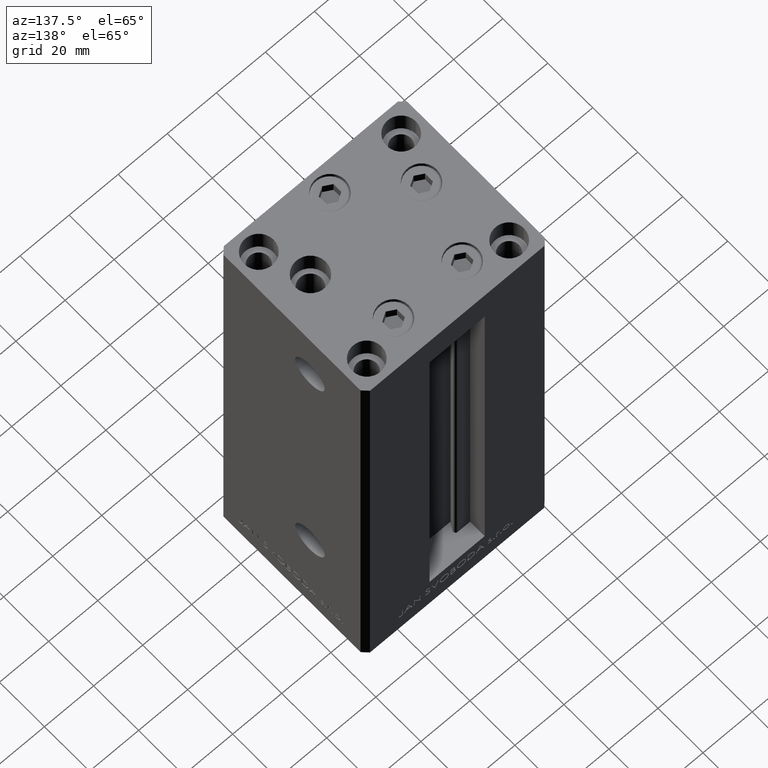
[diagram: clean part render]
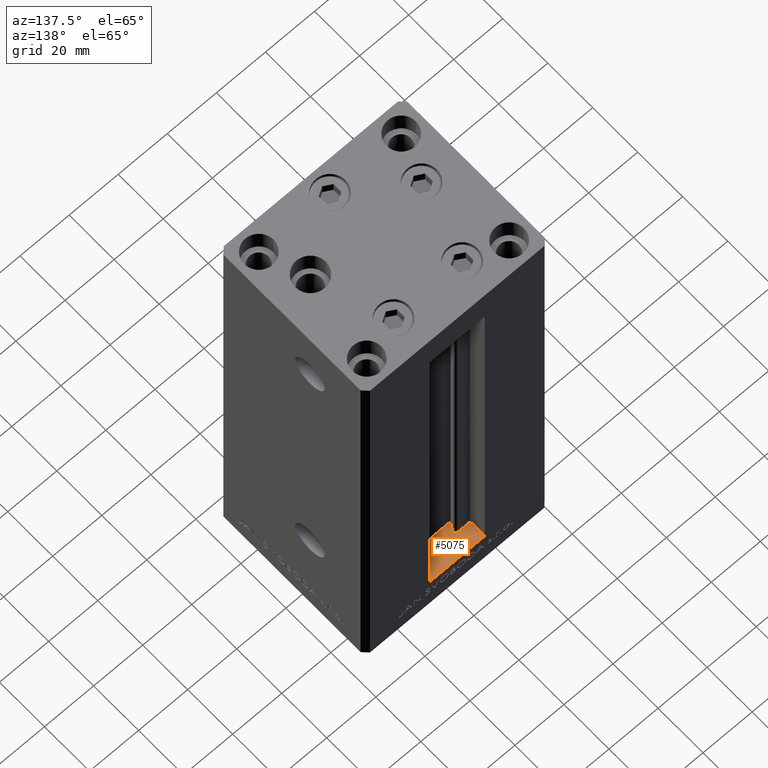
[diagram: same view with one face highlighted and labeled with its STEP entity id]
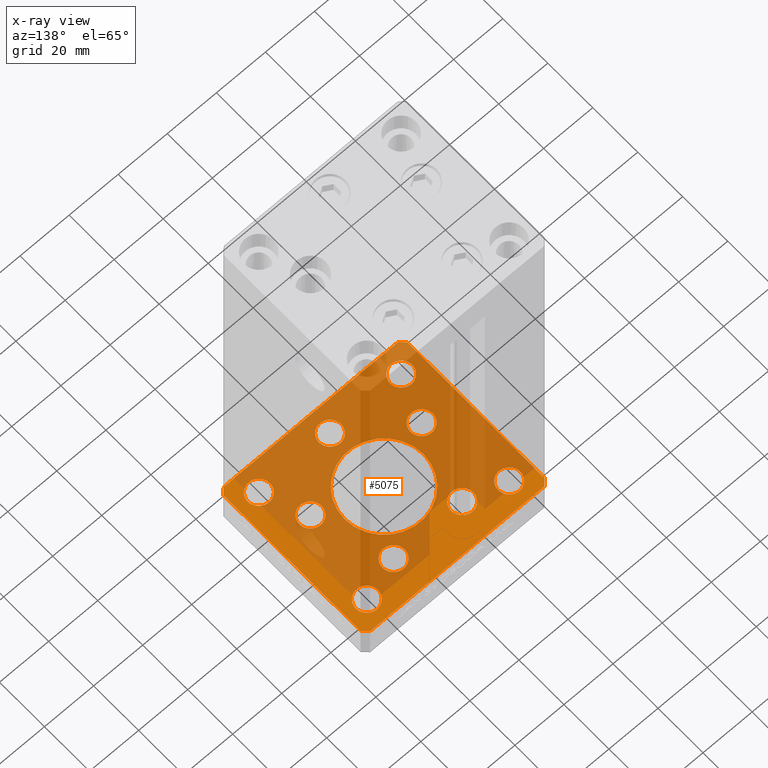
[diagram: x-ray of the same camera — body ghosted, the highlighted face saturated]
A machine part, auxiliary view. The second image highlights one B-rep face of the part: STEP entity #5075.
The next image is the same camera in x-ray: the body ghosted, the highlighted face saturated — about 74% of this face is hidden behind the body in this view.
In plain terms, the highlighted planar face has unit normal (0, 0, -1).
Its self-contained STEP definition (entity closure, byte-faithful):
#142 = CARTESIAN_POINT ( 'NONE',  ( -22.62741699796953299, -8.000000000000000000, -15.00000000000000000 ) ) ;
#243 = AXIS2_PLACEMENT_3D ( 'NONE', #34805, #42059, #4661 ) ;
#250 = EDGE_LOOP ( 'NONE', ( #38400, #26337 ) ) ;
#397 = ORIENTED_EDGE ( 'NONE', *, *, #16939, .T. ) ;
#432 = CIRCLE ( 'NONE', #32227, 4.500000000000000888 ) ;
#684 = DIRECTION ( 'NONE',  ( 0.000000000000000000, -0.000000000000000000, -1.000000000000000000 ) ) ;
#942 = FACE_BOUND ( 'NONE', #36001, .T. ) ;
#983 = DIRECTION ( 'NONE',  ( 1.000000000000000000, 0.000000000000000000, 0.000000000000000000 ) ) ;
#1097 = DIRECTION ( 'NONE',  ( -0.000000000000000000, 0.000000000000000000, 1.000000000000000000 ) ) ;
#1329 = CIRCLE ( 'NONE', #41115, 4.500000000000001776 ) ;
#1412 = CARTESIAN_POINT ( 'NONE',  ( 24.50000000000000711, -23.99999999999999645, -15.00000000000000000 ) ) ;
#1627 = DIRECTION ( 'NONE',  ( -0.000000000000000000, 0.000000000000000000, 1.000000000000000000 ) ) ;
#1946 = EDGE_LOOP ( 'NONE', ( #32610, #43223 ) ) ;
#1993 = ORIENTED_EDGE ( 'NONE', *, *, #33573, .T. ) ;
#2000 = CIRCLE ( 'NONE', #36976, 4.499999999999997335 ) ;
#2285 = AXIS2_PLACEMENT_3D ( 'NONE', #44290, #5423, #10135 ) ;
#2290 = CIRCLE ( 'NONE', #30148, 4.500000000000000888 ) ;
#2345 = CARTESIAN_POINT ( 'NONE',  ( 0.000000000000000000, 0.000000000000000000, -15.00000000000000000 ) ) ;
#2596 = LINE ( 'NONE', #40474, #9770 ) ;
#2617 = ORIENTED_EDGE ( 'NONE', *, *, #5468, .T. ) ;
#2676 = CARTESIAN_POINT ( 'NONE',  ( -13.99106857963324124, 19.50000000000000000, -15.00000000000000000 ) ) ;
#2877 = ORIENTED_EDGE ( 'NONE', *, *, #29733, .T. ) ;
#3171 = ORIENTED_EDGE ( 'NONE', *, *, #44455, .T. ) ;
#3419 = VERTEX_POINT ( 'NONE', #29517 ) ;
#3714 = FACE_BOUND ( 'NONE', #36954, .T. ) ;
#4111 = VECTOR ( 'NONE', #8020, 1000.000000000000000 ) ;
#4661 = DIRECTION ( 'NONE',  ( 1.000000000000000000, 0.000000000000000000, 0.000000000000000000 ) ) ;
#5075 = ADVANCED_FACE ( 'NONE', ( #15173, #26375, #3714, #41834, #12405, #5658, #942, #31815, #23615, #19872, #16868 ), #20846, .F. ) ;
#5081 = DIRECTION ( 'NONE',  ( -0.000000000000000000, 0.000000000000000000, 1.000000000000000000 ) ) ;
#5360 = DIRECTION ( 'NONE',  ( 1.000000000000000000, 0.000000000000000000, 0.000000000000000000 ) ) ;
#5423 = DIRECTION ( 'NONE',  ( 0.000000000000000000, -0.000000000000000000, -1.000000000000000000 ) ) ;
#5468 = EDGE_CURVE ( 'NONE', #32954, #5662, #36621, .T. ) ;
#5490 = AXIS2_PLACEMENT_3D ( 'NONE', #142, #1097, #30516 ) ;
#5658 = FACE_BOUND ( 'NONE', #18619, .T. ) ;
#5662 = VERTEX_POINT ( 'NONE', #1412 ) ;
#5701 = CARTESIAN_POINT ( 'NONE',  ( 16.00000000000000000, 0.000000000000000000, -15.00000000000000000 ) ) ;
#5806 = CARTESIAN_POINT ( 'NONE',  ( 9.491068579633235913, 19.50000000000000000, -15.00000000000000000 ) ) ;
#5924 = CIRCLE ( 'NONE', #46541, 4.500000000000000888 ) ;
#6284 = CARTESIAN_POINT ( 'NONE',  ( -35.50000000000001421, -32.50000000000000711, -15.00000000000000000 ) ) ;
#6289 = CARTESIAN_POINT ( 'NONE',  ( -37.50000000000001421, 30.50000000000000000, -15.00000000000000000 ) ) ;
#6392 = AXIS2_PLACEMENT_3D ( 'NONE', #8292, #49195, #12029 ) ;
#6449 = DIRECTION ( 'NONE',  ( 1.000000000000000000, 0.000000000000000000, 0.000000000000000000 ) ) ;
#6965 = AXIS2_PLACEMENT_3D ( 'NONE', #35954, #5081, #27978 ) ;
#7226 = ORIENTED_EDGE ( 'NONE', *, *, #7372, .F. ) ;
#7372 = EDGE_CURVE ( 'NONE', #43460, #41825, #27169, .T. ) ;
#7498 = AXIS2_PLACEMENT_3D ( 'NONE', #8894, #23601, #27317 ) ;
#7522 = EDGE_CURVE ( 'NONE', #49238, #14176, #27891, .T. ) ;
#7566 = DIRECTION ( 'NONE',  ( -0.000000000000000000, 0.000000000000000000, 1.000000000000000000 ) ) ;
#8020 = DIRECTION ( 'NONE',  ( 1.000000000000000000, 1.172770800660376149E-15, 0.000000000000000000 ) ) ;
#8133 = CARTESIAN_POINT ( 'NONE',  ( -18.12741699796953654, -8.000000000000000000, -15.00000000000000000 ) ) ;
#8170 = CARTESIAN_POINT ( 'NONE',  ( -33.50000000000000000, -23.99999999999999645, -15.00000000000000000 ) ) ;
#8292 = CARTESIAN_POINT ( 'NONE',  ( 29.00000000000000355, -23.99999999999999645, -15.00000000000000000 ) ) ;
#8319 = CIRCLE ( 'NONE', #39314, 4.500000000000005329 ) ;
#8325 = EDGE_CURVE ( 'NONE', #34758, #42395, #27207, .T. ) ;
#8427 = CARTESIAN_POINT ( 'NONE',  ( 0.000000000000000000, 0.000000000000000000, -15.00000000000000000 ) ) ;
#8558 = CARTESIAN_POINT ( 'NONE',  ( -24.50000000000000000, 24.00000000000000711, -15.00000000000000000 ) ) ;
#8725 = EDGE_LOOP ( 'NONE', ( #44553, #18529 ) ) ;
#8748 = DIRECTION ( 'NONE',  ( 1.000000000000000000, 0.000000000000000000, 0.000000000000000000 ) ) ;
#8886 = DIRECTION ( 'NONE',  ( 1.000000000000000000, 0.000000000000000000, 0.000000000000000000 ) ) ;
#8894 = CARTESIAN_POINT ( 'NONE',  ( 29.00000000000000000, 24.00000000000000355, -15.00000000000000000 ) ) ;
#8903 = AXIS2_PLACEMENT_3D ( 'NONE', #36103, #40597, #6449 ) ;
#9437 = CARTESIAN_POINT ( 'NONE',  ( 13.99106857963324124, 19.50000000000000000, -15.00000000000000000 ) ) ;
#9584 = ORIENTED_EDGE ( 'NONE', *, *, #15505, .T. ) ;
#9770 = VECTOR ( 'NONE', #43728, 1000.000000000000000 ) ;
#9778 = CIRCLE ( 'NONE', #16157, 4.499999999999997335 ) ;
#9997 = VERTEX_POINT ( 'NONE', #38106 ) ;
#10021 = CARTESIAN_POINT ( 'NONE',  ( -37.50000000000000000, -30.50000000000004263, -15.00000000000000000 ) ) ;
#10108 = ORIENTED_EDGE ( 'NONE', *, *, #7522, .F. ) ;
#10135 = DIRECTION ( 'NONE',  ( 1.000000000000000000, 0.000000000000000000, 0.000000000000000000 ) ) ;
#10485 = CARTESIAN_POINT ( 'NONE',  ( -4.500000000000001776, -24.00000000000001066, -15.00000000000000000 ) ) ;
#10556 = CIRCLE ( 'NONE', #35232, 16.00000000000000000 ) ;
#11216 = ORIENTED_EDGE ( 'NONE', *, *, #24983, .F. ) ;
#11344 = DIRECTION ( 'NONE',  ( 0.000000000000000000, 1.000000000000000000, 0.000000000000000000 ) ) ;
#11366 = DIRECTION ( 'NONE',  ( 0.000000000000000000, -0.000000000000000000, -1.000000000000000000 ) ) ;
#12029 = DIRECTION ( 'NONE',  ( 1.000000000000000000, 0.000000000000000000, 0.000000000000000000 ) ) ;
#12359 = CARTESIAN_POINT ( 'NONE',  ( -29.00000000000000000, 24.00000000000000711, -15.00000000000000000 ) ) ;
#12405 = FACE_BOUND ( 'NONE', #47648, .T. ) ;
#12478 = CARTESIAN_POINT ( 'NONE',  ( -29.00000000000000000, 24.00000000000000711, -15.00000000000000000 ) ) ;
#12582 = EDGE_CURVE ( 'NONE', #37659, #41472, #16858, .T. ) ;
#12624 = VERTEX_POINT ( 'NONE', #24071 ) ;
#12926 = DIRECTION ( 'NONE',  ( -0.000000000000000000, 0.000000000000000000, 1.000000000000000000 ) ) ;
#13010 = CIRCLE ( 'NONE', #28918, 16.00000000000000000 ) ;
#13429 = VERTEX_POINT ( 'NONE', #5701 ) ;
#13501 = EDGE_CURVE ( 'NONE', #46667, #38121, #15355, .T. ) ;
#13541 = ORIENTED_EDGE ( 'NONE', *, *, #17160, .F. ) ;
#13802 = CARTESIAN_POINT ( 'NONE',  ( 4.500000000000001776, -24.00000000000001066, -15.00000000000000000 ) ) ;
#13806 = DIRECTION ( 'NONE',  ( 0.000000000000000000, -0.000000000000000000, -1.000000000000000000 ) ) ;
#14176 = VERTEX_POINT ( 'NONE', #32195 ) ;
#14544 = ORIENTED_EDGE ( 'NONE', *, *, #8325, .T. ) ;
#14730 = VECTOR ( 'NONE', #40178, 1000.000000000000000 ) ;
#15079 = LINE ( 'NONE', #30266, #32075 ) ;
#15103 = EDGE_CURVE ( 'NONE', #12624, #22463, #15079, .T. ) ;
#15173 = FACE_BOUND ( 'NONE', #250, .T. ) ;
#15355 = CIRCLE ( 'NONE', #243, 4.500000000000000888 ) ;
#15505 = EDGE_CURVE ( 'NONE', #33047, #36737, #9778, .T. ) ;
#15956 = AXIS2_PLACEMENT_3D ( 'NONE', #8427, #38812, #20356 ) ;
#16146 = DIRECTION ( 'NONE',  ( -0.000000000000000000, 0.000000000000000000, 1.000000000000000000 ) ) ;
#16157 = AXIS2_PLACEMENT_3D ( 'NONE', #22911, #27120, #38117 ) ;
#16601 = ORIENTED_EDGE ( 'NONE', *, *, #20437, .T. ) ;
#16858 = CIRCLE ( 'NONE', #41569, 4.499999999999999112 ) ;
#16868 = FACE_BOUND ( 'NONE', #24679, .T. ) ;
#16939 = EDGE_CURVE ( 'NONE', #43408, #44301, #24185, .T. ) ;
#17160 = EDGE_CURVE ( 'NONE', #3419, #32261, #36124, .T. ) ;
#17877 = DIRECTION ( 'NONE',  ( -0.000000000000000000, 0.000000000000000000, 1.000000000000000000 ) ) ;
#17908 = EDGE_LOOP ( 'NONE', ( #9584, #3171 ) ) ;
#18529 = ORIENTED_EDGE ( 'NONE', *, *, #35450, .F. ) ;
#18588 = LINE ( 'NONE', #46014, #20193 ) ;
#18619 = EDGE_LOOP ( 'NONE', ( #16601, #37602 ) ) ;
#19072 = CARTESIAN_POINT ( 'NONE',  ( 0.000000000000000000, 0.000000000000000000, -15.00000000000000000 ) ) ;
#19247 = EDGE_CURVE ( 'NONE', #5662, #32954, #2000, .T. ) ;
#19424 = AXIS2_PLACEMENT_3D ( 'NONE', #9437, #12926, #983 ) ;
#19579 = DIRECTION ( 'NONE',  ( 0.7071067811865463515, 0.7071067811865487940, 0.000000000000000000 ) ) ;
#19645 = VERTEX_POINT ( 'NONE', #6289 ) ;
#19872 = FACE_BOUND ( 'NONE', #23189, .T. ) ;
#19947 = ORIENTED_EDGE ( 'NONE', *, *, #46979, .F. ) ;
#20193 = VECTOR ( 'NONE', #19579, 1000.000000000000000 ) ;
#20310 = DIRECTION ( 'NONE',  ( -0.000000000000000000, 0.000000000000000000, 1.000000000000000000 ) ) ;
#20356 = DIRECTION ( 'NONE',  ( 1.000000000000000000, 0.000000000000000000, 0.000000000000000000 ) ) ;
#20437 = EDGE_CURVE ( 'NONE', #41472, #37659, #27476, .T. ) ;
#20846 = PLANE ( 'NONE',  #15956 ) ;
#21862 = DIRECTION ( 'NONE',  ( 1.000000000000000000, 0.000000000000000000, 0.000000000000000000 ) ) ;
#22318 = VERTEX_POINT ( 'NONE', #30902 ) ;
#22463 = VERTEX_POINT ( 'NONE', #29854 ) ;
#22911 = CARTESIAN_POINT ( 'NONE',  ( -22.62741699796953299, -8.000000000000000000, -15.00000000000000000 ) ) ;
#23189 = EDGE_LOOP ( 'NONE', ( #1993, #2877 ) ) ;
#23601 = DIRECTION ( 'NONE',  ( 0.000000000000000000, -0.000000000000000000, -1.000000000000000000 ) ) ;
#23615 = FACE_OUTER_BOUND ( 'NONE', #45800, .T. ) ;
#23730 = CARTESIAN_POINT ( 'NONE',  ( -29.00000000000000000, -23.99999999999999645, -15.00000000000000000 ) ) ;
#24045 = CARTESIAN_POINT ( 'NONE',  ( 29.00000000000000355, -23.99999999999999645, -15.00000000000000000 ) ) ;
#24071 = CARTESIAN_POINT ( 'NONE',  ( 37.50000000000000711, -30.49999999999992895, -15.00000000000000000 ) ) ;
#24185 = CIRCLE ( 'NONE', #19424, 4.500000000000005329 ) ;
#24679 = EDGE_LOOP ( 'NONE', ( #2617, #38885 ) ) ;
#24746 = ORIENTED_EDGE ( 'NONE', *, *, #15103, .F. ) ;
#24983 = EDGE_CURVE ( 'NONE', #22463, #49238, #2596, .T. ) ;
#25311 = EDGE_CURVE ( 'NONE', #9997, #13429, #10556, .T. ) ;
#25519 = CARTESIAN_POINT ( 'NONE',  ( -33.50000000000000000, 24.00000000000000711, -15.00000000000000000 ) ) ;
#26264 = CARTESIAN_POINT ( 'NONE',  ( -27.12741699796953299, -8.000000000000000000, -15.00000000000000000 ) ) ;
#26337 = ORIENTED_EDGE ( 'NONE', *, *, #25311, .F. ) ;
#26371 = ORIENTED_EDGE ( 'NONE', *, *, #35452, .F. ) ;
#26375 = FACE_BOUND ( 'NONE', #17908, .T. ) ;
#27120 = DIRECTION ( 'NONE',  ( -0.000000000000000000, 0.000000000000000000, 1.000000000000000000 ) ) ;
#27169 = LINE ( 'NONE', #27407, #4111 ) ;
#27207 = CIRCLE ( 'NONE', #8903, 4.500000000000001776 ) ;
#27277 = EDGE_CURVE ( 'NONE', #41825, #12624, #18588, .T. ) ;
#27317 = DIRECTION ( 'NONE',  ( 1.000000000000000000, 0.000000000000000000, 0.000000000000000000 ) ) ;
#27407 = CARTESIAN_POINT ( 'NONE',  ( -35.50000000000001421, -32.50000000000000711, -15.00000000000000000 ) ) ;
#27476 = CIRCLE ( 'NONE', #48171, 4.499999999999999112 ) ;
#27496 = EDGE_CURVE ( 'NONE', #13429, #9997, #13010, .T. ) ;
#27778 = CARTESIAN_POINT ( 'NONE',  ( -18.49106857963323947, 19.50000000000000000, -15.00000000000000000 ) ) ;
#27891 = LINE ( 'NONE', #32132, #39875 ) ;
#27978 = DIRECTION ( 'NONE',  ( 1.000000000000000000, 0.000000000000000000, 0.000000000000000000 ) ) ;
#28182 = LINE ( 'NONE', #38693, #28235 ) ;
#28235 = VECTOR ( 'NONE', #35913, 1000.000000000000000 ) ;
#28738 = DIRECTION ( 'NONE',  ( 1.000000000000000000, 0.000000000000000000, 0.000000000000000000 ) ) ;
#28835 = LINE ( 'NONE', #36327, #39663 ) ;
#28918 = AXIS2_PLACEMENT_3D ( 'NONE', #2345, #13806, #28738 ) ;
#29084 = DIRECTION ( 'NONE',  ( -0.000000000000000000, 0.000000000000000000, 1.000000000000000000 ) ) ;
#29517 = CARTESIAN_POINT ( 'NONE',  ( 33.50000000000000000, 24.00000000000000355, -15.00000000000000000 ) ) ;
#29733 = EDGE_CURVE ( 'NONE', #44288, #33331, #5924, .T. ) ;
#29854 = CARTESIAN_POINT ( 'NONE',  ( 37.50000000000000711, 30.50000000000001421, -15.00000000000000000 ) ) ;
#30037 = DIRECTION ( 'NONE',  ( 1.000000000000000000, 0.000000000000000000, 0.000000000000000000 ) ) ;
#30148 = AXIS2_PLACEMENT_3D ( 'NONE', #39034, #684, #8886 ) ;
#30266 = CARTESIAN_POINT ( 'NONE',  ( 37.50000000000000711, -30.49999999999992895, -15.00000000000000000 ) ) ;
#30516 = DIRECTION ( 'NONE',  ( 1.000000000000000000, 0.000000000000000000, 0.000000000000000000 ) ) ;
#30902 = CARTESIAN_POINT ( 'NONE',  ( -37.50000000000000000, -30.50000000000004263, -15.00000000000000000 ) ) ;
#30905 = ORIENTED_EDGE ( 'NONE', *, *, #31126, .F. ) ;
#31091 = CARTESIAN_POINT ( 'NONE',  ( 13.99106857963324124, 19.50000000000000000, -15.00000000000000000 ) ) ;
#31126 = EDGE_CURVE ( 'NONE', #22318, #43460, #44415, .T. ) ;
#31815 = FACE_BOUND ( 'NONE', #8725, .T. ) ;
#32075 = VECTOR ( 'NONE', #11344, 1000.000000000000000 ) ;
#32132 = CARTESIAN_POINT ( 'NONE',  ( 35.50000000000000000, 32.49999999999999289, -15.00000000000000000 ) ) ;
#32195 = CARTESIAN_POINT ( 'NONE',  ( -35.50000000000000711, 32.49999999999997868, -15.00000000000000000 ) ) ;
#32227 = AXIS2_PLACEMENT_3D ( 'NONE', #23730, #39178, #42921 ) ;
#32252 = DIRECTION ( 'NONE',  ( 1.000000000000000000, 0.000000000000000000, 0.000000000000000000 ) ) ;
#32261 = VERTEX_POINT ( 'NONE', #48505 ) ;
#32610 = ORIENTED_EDGE ( 'NONE', *, *, #13501, .T. ) ;
#32904 = EDGE_CURVE ( 'NONE', #44301, #43408, #8319, .T. ) ;
#32954 = VERTEX_POINT ( 'NONE', #44282 ) ;
#33047 = VERTEX_POINT ( 'NONE', #8133 ) ;
#33331 = VERTEX_POINT ( 'NONE', #8558 ) ;
#33342 = VERTEX_POINT ( 'NONE', #35448 ) ;
#33573 = EDGE_CURVE ( 'NONE', #33331, #44288, #40138, .T. ) ;
#34758 = VERTEX_POINT ( 'NONE', #10485 ) ;
#34805 = CARTESIAN_POINT ( 'NONE',  ( 22.62741699796953299, -8.000000000000000000, -15.00000000000000000 ) ) ;
#35232 = AXIS2_PLACEMENT_3D ( 'NONE', #19072, #11366, #30037 ) ;
#35448 = CARTESIAN_POINT ( 'NONE',  ( -24.50000000000000000, -23.99999999999999645, -15.00000000000000000 ) ) ;
#35450 = EDGE_CURVE ( 'NONE', #47231, #33342, #432, .T. ) ;
#35452 = EDGE_CURVE ( 'NONE', #14176, #19645, #28182, .T. ) ;
#35671 = ORIENTED_EDGE ( 'NONE', *, *, #27277, .F. ) ;
#35913 = DIRECTION ( 'NONE',  ( -0.7071067811865524577, -0.7071067811865426878, 0.000000000000000000 ) ) ;
#35954 = CARTESIAN_POINT ( 'NONE',  ( 22.62741699796953299, -8.000000000000000000, -15.00000000000000000 ) ) ;
#36001 = EDGE_LOOP ( 'NONE', ( #13541, #48096 ) ) ;
#36103 = CARTESIAN_POINT ( 'NONE',  ( 0.000000000000000000, -24.00000000000001066, -15.00000000000000000 ) ) ;
#36124 = CIRCLE ( 'NONE', #7498, 4.500000000000000888 ) ;
#36327 = CARTESIAN_POINT ( 'NONE',  ( -37.50000000000001421, 30.50000000000000000, -15.00000000000000000 ) ) ;
#36621 = CIRCLE ( 'NONE', #6392, 4.499999999999997335 ) ;
#36737 = VERTEX_POINT ( 'NONE', #26264 ) ;
#36954 = EDGE_LOOP ( 'NONE', ( #48735, #14544 ) ) ;
#36976 = AXIS2_PLACEMENT_3D ( 'NONE', #24045, #20310, #5360 ) ;
#37602 = ORIENTED_EDGE ( 'NONE', *, *, #12582, .T. ) ;
#37659 = VERTEX_POINT ( 'NONE', #27778 ) ;
#38106 = CARTESIAN_POINT ( 'NONE',  ( -16.00000000000000000, 1.959434878635765131E-15, -15.00000000000000000 ) ) ;
#38117 = DIRECTION ( 'NONE',  ( 1.000000000000000000, 0.000000000000000000, 0.000000000000000000 ) ) ;
#38121 = VERTEX_POINT ( 'NONE', #38354 ) ;
#38354 = CARTESIAN_POINT ( 'NONE',  ( 18.12741699796953299, -8.000000000000000000, -15.00000000000000000 ) ) ;
#38400 = ORIENTED_EDGE ( 'NONE', *, *, #27496, .F. ) ;
#38537 = ORIENTED_EDGE ( 'NONE', *, *, #32904, .T. ) ;
#38544 = AXIS2_PLACEMENT_3D ( 'NONE', #12478, #39862, #8748 ) ;
#38693 = CARTESIAN_POINT ( 'NONE',  ( -35.50000000000000711, 32.49999999999997868, -15.00000000000000000 ) ) ;
#38812 = DIRECTION ( 'NONE',  ( -0.000000000000000000, 0.000000000000000000, 1.000000000000000000 ) ) ;
#38831 = EDGE_CURVE ( 'NONE', #42395, #34758, #1329, .T. ) ;
#38885 = ORIENTED_EDGE ( 'NONE', *, *, #19247, .T. ) ;
#39034 = CARTESIAN_POINT ( 'NONE',  ( 29.00000000000000000, 24.00000000000000355, -15.00000000000000000 ) ) ;
#39178 = DIRECTION ( 'NONE',  ( 0.000000000000000000, -0.000000000000000000, -1.000000000000000000 ) ) ;
#39314 = AXIS2_PLACEMENT_3D ( 'NONE', #31091, #16146, #46567 ) ;
#39663 = VECTOR ( 'NONE', #44318, 1000.000000000000000 ) ;
#39862 = DIRECTION ( 'NONE',  ( -0.000000000000000000, 0.000000000000000000, 1.000000000000000000 ) ) ;
#39875 = VECTOR ( 'NONE', #40105, 1000.000000000000000 ) ;
#40056 = EDGE_CURVE ( 'NONE', #38121, #46667, #40357, .T. ) ;
#40105 = DIRECTION ( 'NONE',  ( -1.000000000000000000, -1.954618001100627573E-16, 0.000000000000000000 ) ) ;
#40138 = CIRCLE ( 'NONE', #38544, 4.500000000000000888 ) ;
#40178 = DIRECTION ( 'NONE',  ( 0.7071067811865512365, -0.7071067811865439090, 0.000000000000000000 ) ) ;
#40231 = CARTESIAN_POINT ( 'NONE',  ( 35.50000000000000000, 32.49999999999999289, -15.00000000000000000 ) ) ;
#40357 = CIRCLE ( 'NONE', #6965, 4.500000000000000888 ) ;
#40474 = CARTESIAN_POINT ( 'NONE',  ( 37.50000000000000711, 30.50000000000001421, -15.00000000000000000 ) ) ;
#40597 = DIRECTION ( 'NONE',  ( -0.000000000000000000, 0.000000000000000000, 1.000000000000000000 ) ) ;
#41115 = AXIS2_PLACEMENT_3D ( 'NONE', #48929, #7566, #44680 ) ;
#41251 = CARTESIAN_POINT ( 'NONE',  ( 18.49106857963324657, 19.50000000000000000, -15.00000000000000000 ) ) ;
#41400 = CARTESIAN_POINT ( 'NONE',  ( -9.491068579633243019, 19.50000000000000000, -15.00000000000000000 ) ) ;
#41472 = VERTEX_POINT ( 'NONE', #41400 ) ;
#41569 = AXIS2_PLACEMENT_3D ( 'NONE', #48047, #29084, #21862 ) ;
#41586 = CARTESIAN_POINT ( 'NONE',  ( 35.50000000000001421, -32.49999999999992184, -15.00000000000000000 ) ) ;
#41825 = VERTEX_POINT ( 'NONE', #41586 ) ;
#41834 = FACE_BOUND ( 'NONE', #1946, .T. ) ;
#42059 = DIRECTION ( 'NONE',  ( -0.000000000000000000, 0.000000000000000000, 1.000000000000000000 ) ) ;
#42395 = VERTEX_POINT ( 'NONE', #13802 ) ;
#42882 = CIRCLE ( 'NONE', #2285, 4.500000000000000888 ) ;
#42921 = DIRECTION ( 'NONE',  ( 1.000000000000000000, 0.000000000000000000, 0.000000000000000000 ) ) ;
#43223 = ORIENTED_EDGE ( 'NONE', *, *, #40056, .T. ) ;
#43394 = CARTESIAN_POINT ( 'NONE',  ( 27.12741699796953654, -8.000000000000000000, -15.00000000000000000 ) ) ;
#43408 = VERTEX_POINT ( 'NONE', #5806 ) ;
#43460 = VERTEX_POINT ( 'NONE', #6284 ) ;
#43728 = DIRECTION ( 'NONE',  ( -0.7071067811865524577, 0.7071067811865426878, 0.000000000000000000 ) ) ;
#44282 = CARTESIAN_POINT ( 'NONE',  ( 33.50000000000000000, -23.99999999999999645, -15.00000000000000000 ) ) ;
#44288 = VERTEX_POINT ( 'NONE', #25519 ) ;
#44290 = CARTESIAN_POINT ( 'NONE',  ( -29.00000000000000000, -23.99999999999999645, -15.00000000000000000 ) ) ;
#44301 = VERTEX_POINT ( 'NONE', #41251 ) ;
#44318 = DIRECTION ( 'NONE',  ( 2.275047181608926165E-16, -1.000000000000000000, 0.000000000000000000 ) ) ;
#44415 = LINE ( 'NONE', #10021, #14730 ) ;
#44455 = EDGE_CURVE ( 'NONE', #36737, #33047, #45281, .T. ) ;
#44553 = ORIENTED_EDGE ( 'NONE', *, *, #49036, .F. ) ;
#44680 = DIRECTION ( 'NONE',  ( 1.000000000000000000, 0.000000000000000000, 0.000000000000000000 ) ) ;
#44858 = EDGE_CURVE ( 'NONE', #32261, #3419, #2290, .T. ) ;
#45281 = CIRCLE ( 'NONE', #5490, 4.499999999999997335 ) ;
#45800 = EDGE_LOOP ( 'NONE', ( #30905, #19947, #26371, #10108, #11216, #24746, #35671, #7226 ) ) ;
#46014 = CARTESIAN_POINT ( 'NONE',  ( 35.50000000000001421, -32.49999999999992184, -15.00000000000000000 ) ) ;
#46541 = AXIS2_PLACEMENT_3D ( 'NONE', #12359, #1627, #32252 ) ;
#46567 = DIRECTION ( 'NONE',  ( 1.000000000000000000, 0.000000000000000000, 0.000000000000000000 ) ) ;
#46667 = VERTEX_POINT ( 'NONE', #43394 ) ;
#46979 = EDGE_CURVE ( 'NONE', #19645, #22318, #28835, .T. ) ;
#47231 = VERTEX_POINT ( 'NONE', #8170 ) ;
#47648 = EDGE_LOOP ( 'NONE', ( #38537, #397 ) ) ;
#48047 = CARTESIAN_POINT ( 'NONE',  ( -13.99106857963324124, 19.50000000000000000, -15.00000000000000000 ) ) ;
#48096 = ORIENTED_EDGE ( 'NONE', *, *, #44858, .F. ) ;
#48171 = AXIS2_PLACEMENT_3D ( 'NONE', #2676, #17877, #48799 ) ;
#48505 = CARTESIAN_POINT ( 'NONE',  ( 24.50000000000000000, 24.00000000000000355, -15.00000000000000000 ) ) ;
#48735 = ORIENTED_EDGE ( 'NONE', *, *, #38831, .T. ) ;
#48799 = DIRECTION ( 'NONE',  ( 1.000000000000000000, 0.000000000000000000, 0.000000000000000000 ) ) ;
#48929 = CARTESIAN_POINT ( 'NONE',  ( 0.000000000000000000, -24.00000000000001066, -15.00000000000000000 ) ) ;
#49036 = EDGE_CURVE ( 'NONE', #33342, #47231, #42882, .T. ) ;
#49195 = DIRECTION ( 'NONE',  ( -0.000000000000000000, 0.000000000000000000, 1.000000000000000000 ) ) ;
#49238 = VERTEX_POINT ( 'NONE', #40231 ) ;